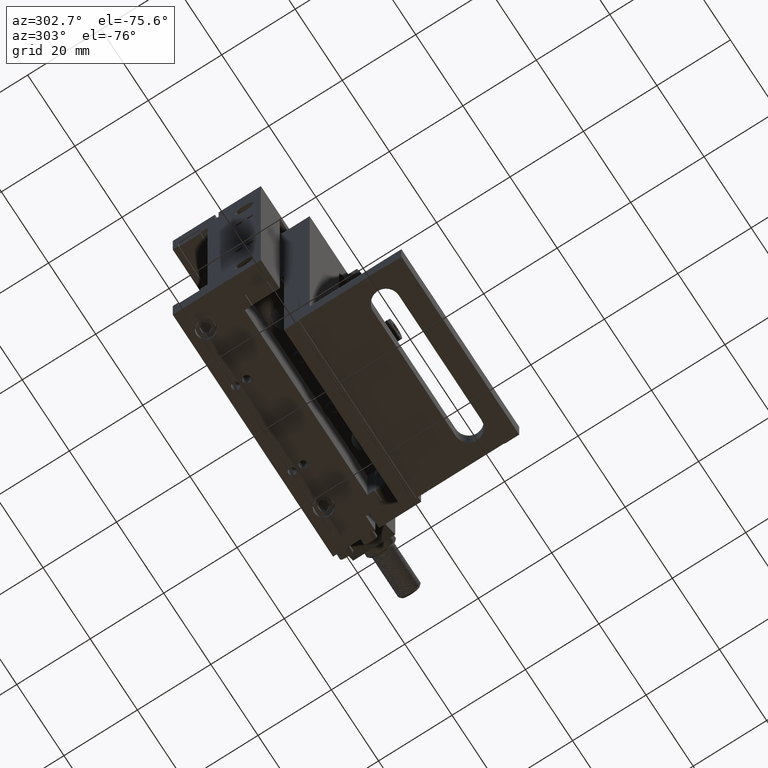
[diagram: clean part render]
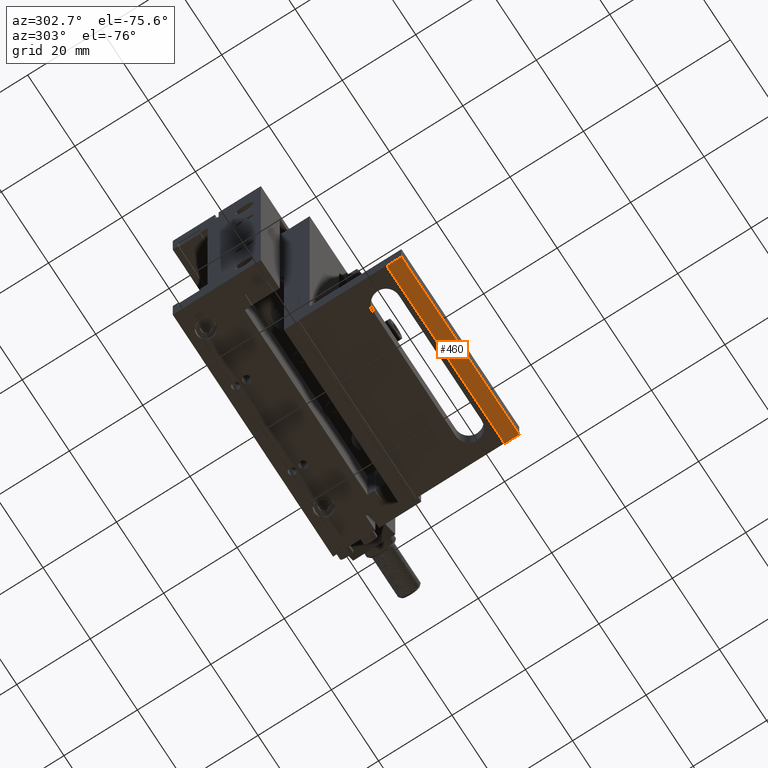
[diagram: same view with one face highlighted and labeled with its STEP entity id]
A machine part, auxiliary view. The second image highlights one B-rep face of the part: STEP entity #460.
In plain terms, the highlighted planar face has unit normal (0, 0, -1).
Its self-contained STEP definition (entity closure, byte-faithful):
#460=ADVANCED_FACE('',(#1985),#23153,.T.);
#1985=FACE_OUTER_BOUND('',#3535,.T.);
#3535=EDGE_LOOP('',(#6091,#6092,#6093,#6094));
#6091=ORIENTED_EDGE('',*,*,#13120,.T.);
#6092=ORIENTED_EDGE('',*,*,#12759,.F.);
#6093=ORIENTED_EDGE('',*,*,#13108,.F.);
#6094=ORIENTED_EDGE('',*,*,#12801,.F.);
#12759=EDGE_CURVE('',#20307,#20308,#17424,.T.);
#12801=EDGE_CURVE('',#20366,#20367,#17466,.T.);
#13108=EDGE_CURVE('',#20367,#20307,#17682,.T.);
#13120=EDGE_CURVE('',#20366,#20308,#17692,.T.);
#17424=B_SPLINE_CURVE_WITH_KNOTS('',1,(#28421,#28422),.UNSPECIFIED.,.F.,
 .F.,(2,2),(0.,4.),.UNSPECIFIED.);
#17466=B_SPLINE_CURVE_WITH_KNOTS('',1,(#28505,#28506),.UNSPECIFIED.,.F.,
 .F.,(2,2),(0.,4.),.UNSPECIFIED.);
#17682=B_SPLINE_CURVE_WITH_KNOTS('',1,(#29328,#29329),.UNSPECIFIED.,.F.,
 .F.,(2,2),(0.,50.0000000000003),.UNSPECIFIED.);
#17692=B_SPLINE_CURVE_WITH_KNOTS('',1,(#29358,#29359),.UNSPECIFIED.,.F.,
 .F.,(2,2),(0.,50.0000000000003),.UNSPECIFIED.);
#20307=VERTEX_POINT('',#27444);
#20308=VERTEX_POINT('',#27445);
#20366=VERTEX_POINT('',#27503);
#20367=VERTEX_POINT('',#27504);
#23153=PLANE('',#24018);
#24018=AXIS2_PLACEMENT_3D('',#26886,#25363,$);
#25363=DIRECTION('',(0.,0.,-1.));
#26886=CARTESIAN_POINT('',(-42.1199975952796,-29.020006164386,0.00082184909675275));
#27444=CARTESIAN_POINT('',(13.0000024047207,-28.500006164386,0.000821849096752203));
#27445=CARTESIAN_POINT('',(13.0000024047207,-24.500006164386,0.000821849096752203));
#27503=CARTESIAN_POINT('',(-36.9999975952795,-24.500006164386,0.000821849096752203));
#27504=CARTESIAN_POINT('',(-36.9999975952795,-28.500006164386,0.000821849096752203));
#28421=CARTESIAN_POINT('',(13.0000024047207,-28.500006164386,0.000821849096752203));
#28422=CARTESIAN_POINT('',(13.0000024047207,-24.500006164386,0.000821849096752203));
#28505=CARTESIAN_POINT('',(-36.9999975952795,-24.500006164386,0.000821849096752203));
#28506=CARTESIAN_POINT('',(-36.9999975952795,-28.500006164386,0.000821849096752203));
#29328=CARTESIAN_POINT('',(-36.9999975952795,-28.500006164386,0.000821849096752203));
#29329=CARTESIAN_POINT('',(13.0000024047207,-28.500006164386,0.000821849096752203));
#29358=CARTESIAN_POINT('',(-36.9999975952795,-24.500006164386,0.000821849096752203));
#29359=CARTESIAN_POINT('',(13.0000024047207,-24.500006164386,0.000821849096752203));